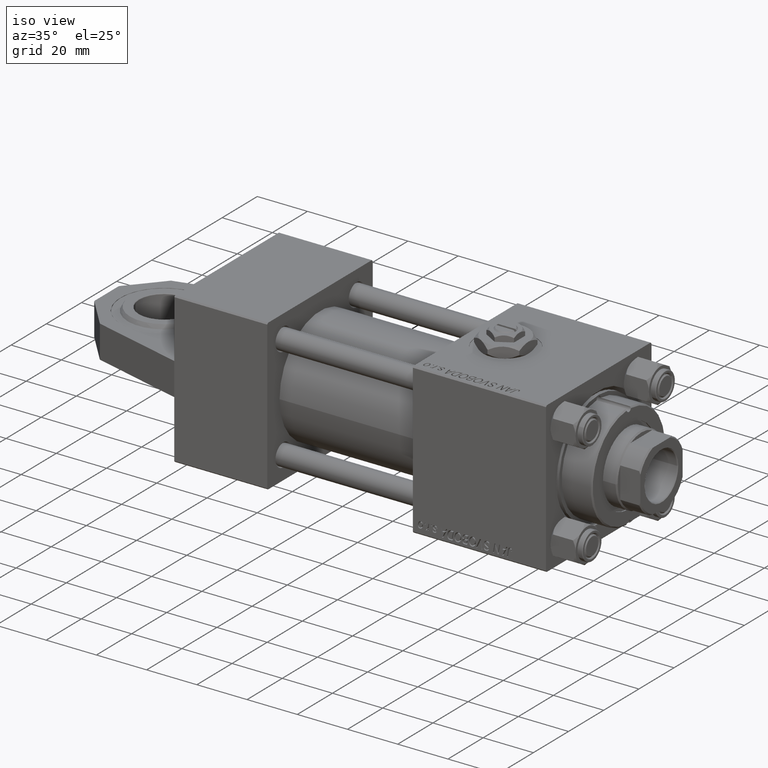
[diagram: clean part render]
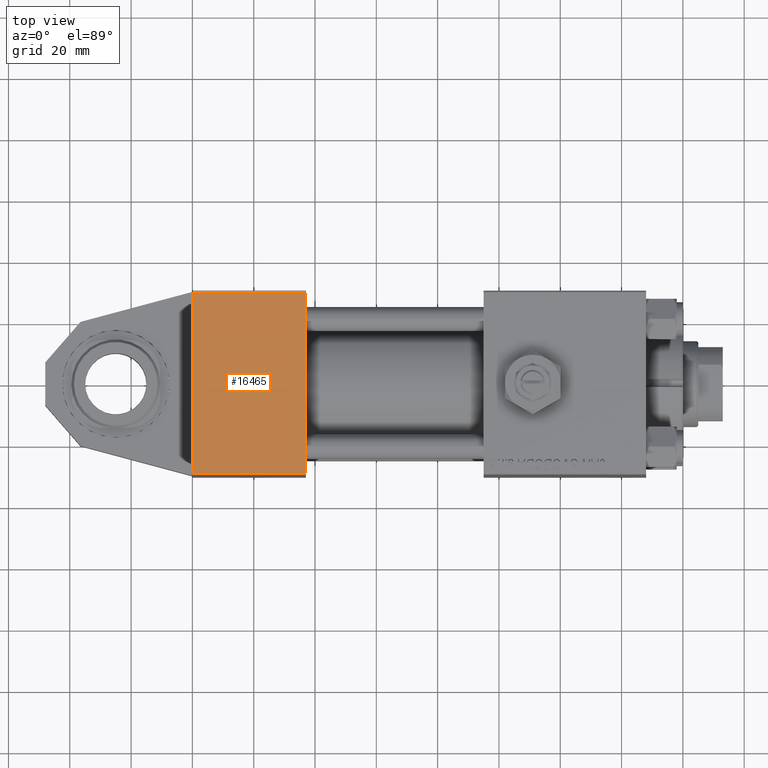
[diagram: tour spotlight — one face highlighted and labeled with its STEP entity id]
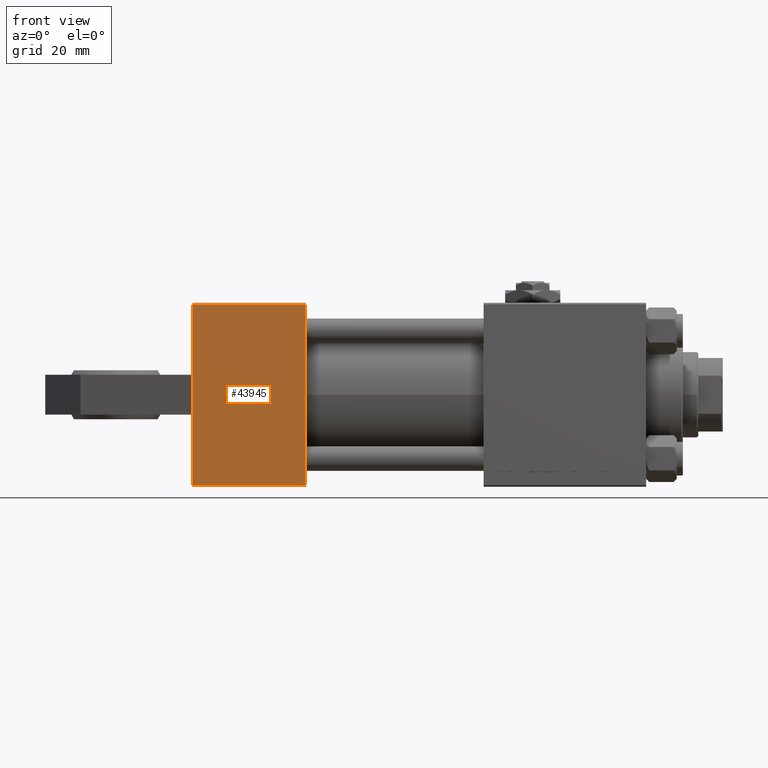
[diagram: tour spotlight — one face highlighted and labeled with its STEP entity id]
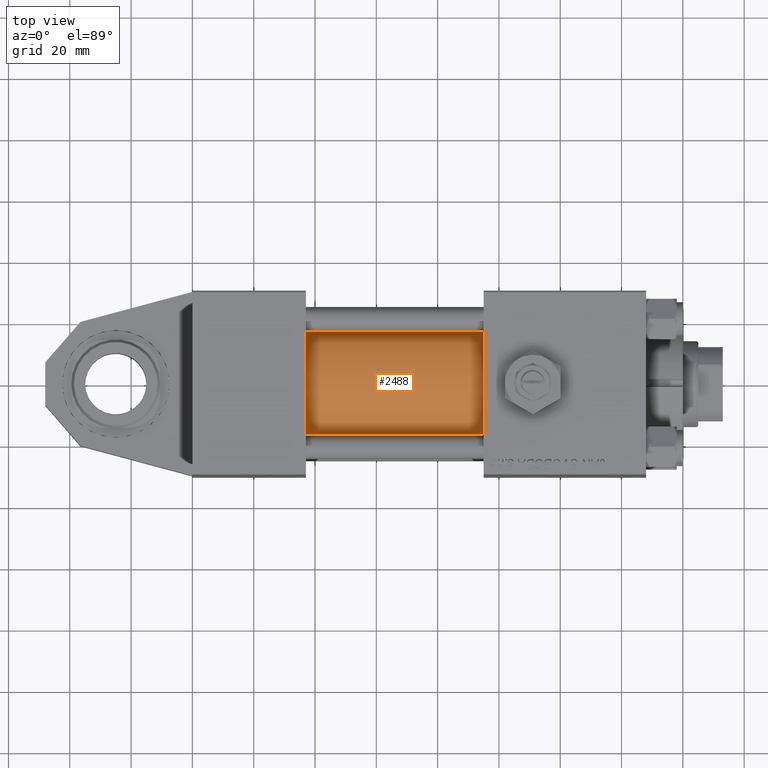
[diagram: tour spotlight — one face highlighted and labeled with its STEP entity id]
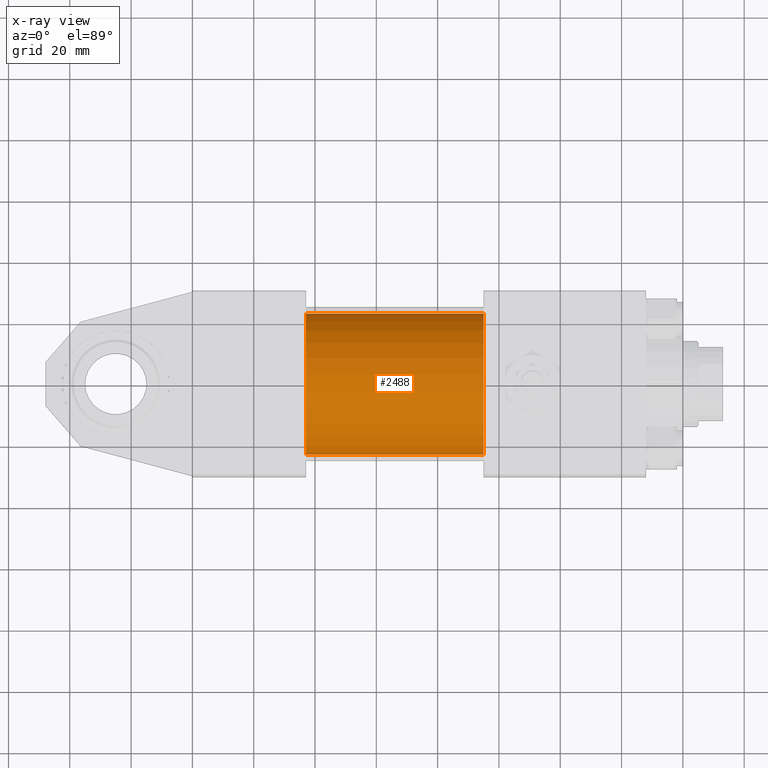
[diagram: x-ray of the same camera — body ghosted, this tour face saturated]
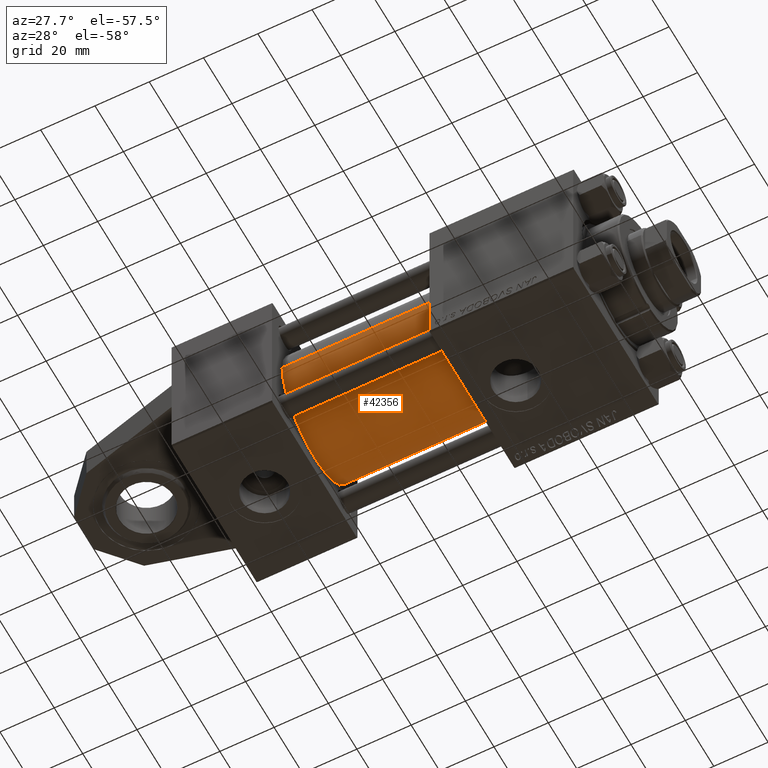
[diagram: tour spotlight — one face highlighted and labeled with its STEP entity id]
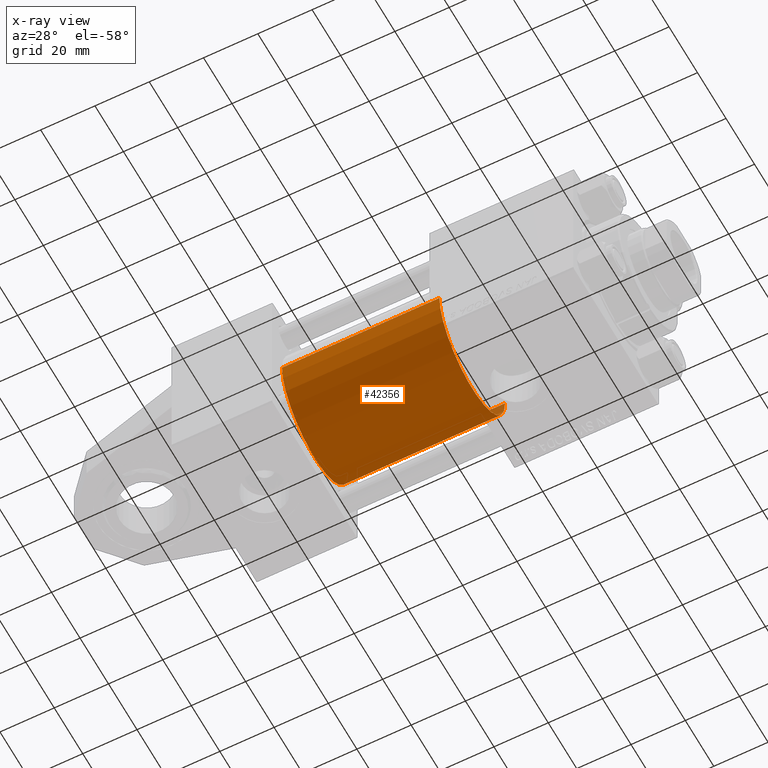
[diagram: x-ray of the same camera — body ghosted, this tour face saturated]
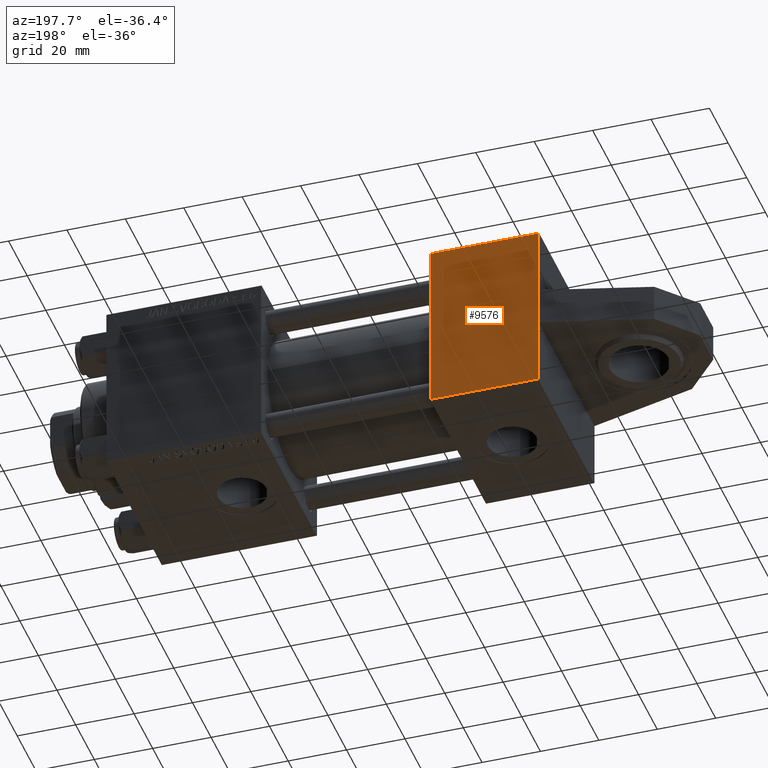
[diagram: tour spotlight — one face highlighted and labeled with its STEP entity id]
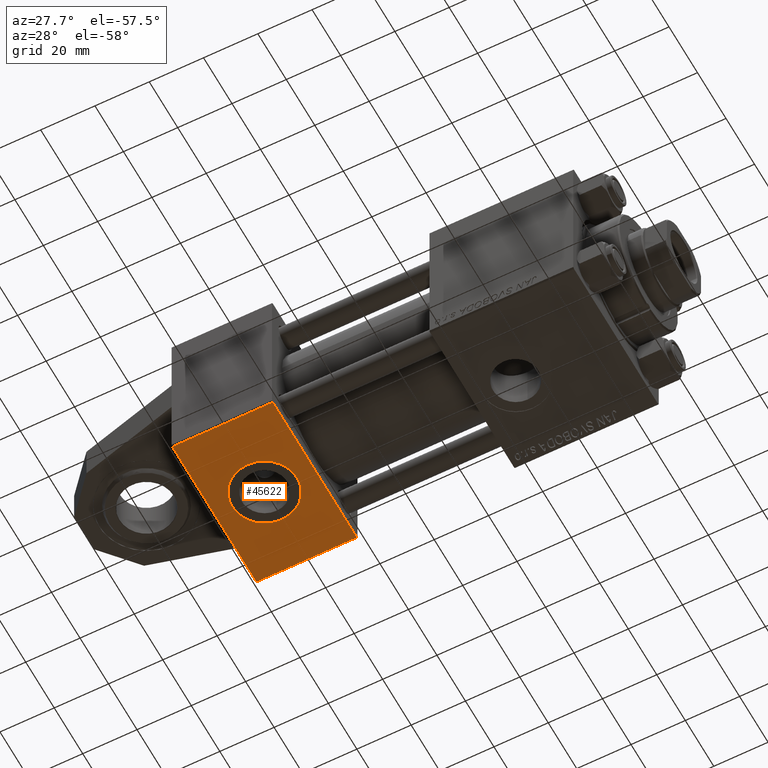
[diagram: tour spotlight — one face highlighted and labeled with its STEP entity id]
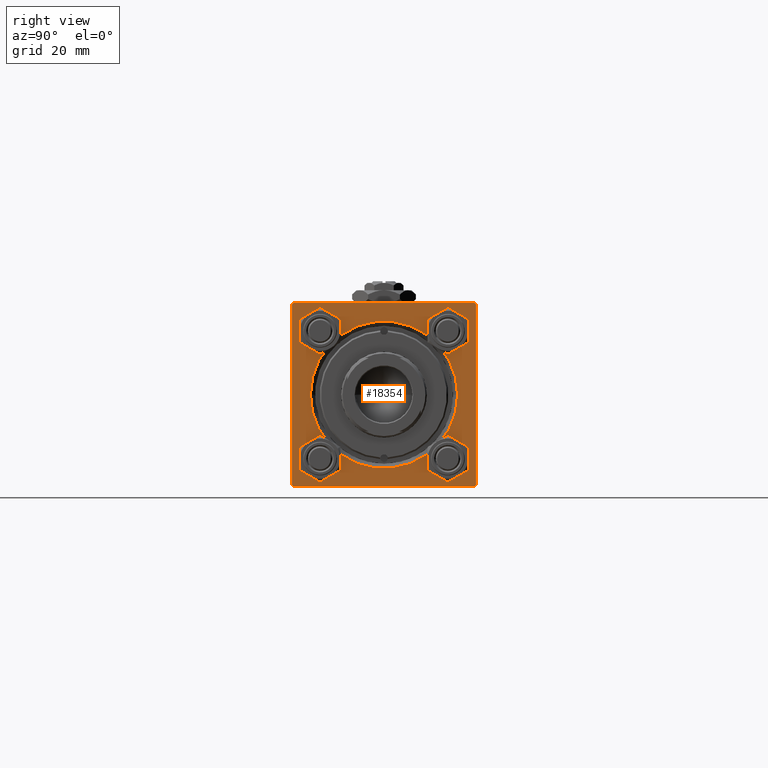
[diagram: tour spotlight — one face highlighted and labeled with its STEP entity id]
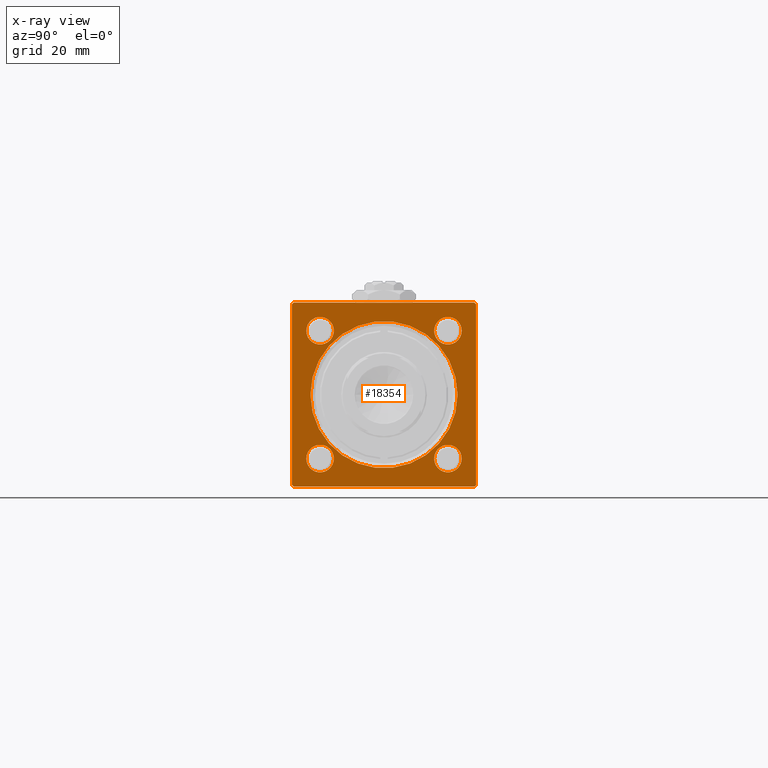
[diagram: x-ray of the same camera — body ghosted, this tour face saturated]
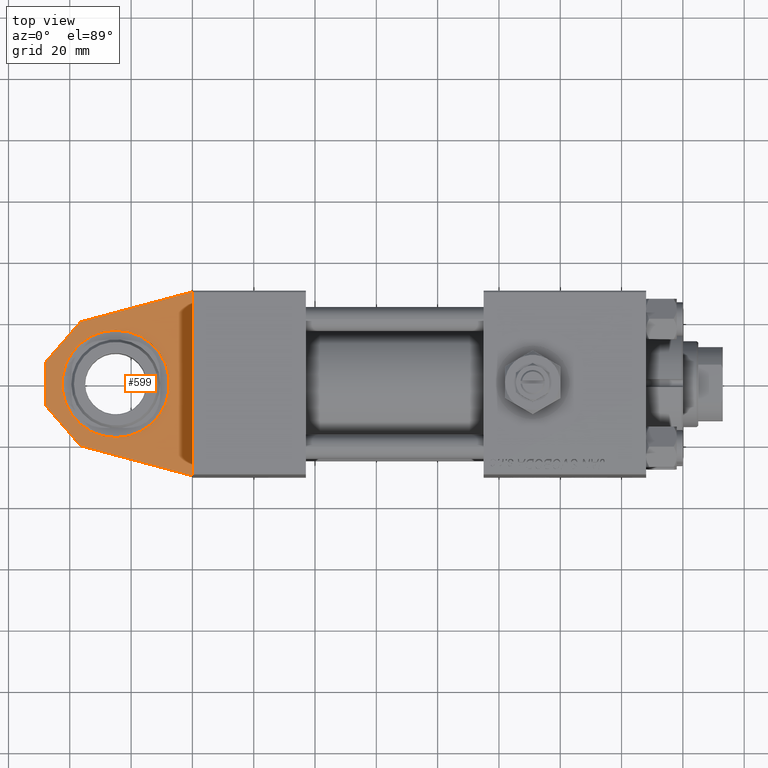
[diagram: tour spotlight — one face highlighted and labeled with its STEP entity id]
A machine part: a face-by-face anatomy tour. The part has 1193 B-rep faces; the first image is the clean iso view, then the 8 largest visible faces are spotlighted one at a time (largest first), each with its STEP entity span.

Face 1 — top view, entity #16465. In plain terms, the highlighted planar face has unit normal (0, 0, 1).
Definition (entity closure, byte-faithful):
#1224 = VECTOR ( 'NONE', #47038, 1000.000000000000000 ) ;
#1463 = EDGE_CURVE ( 'NONE', #30868, #1765, #15321, .T. ) ;
#1765 = VERTEX_POINT ( 'NONE', #11821 ) ;
#4557 = EDGE_LOOP ( 'NONE', ( #46574, #47346, #33734, #6686 ) ) ;
#6686 = ORIENTED_EDGE ( 'NONE', *, *, #21506, .T. ) ;
#6831 = VECTOR ( 'NONE', #15066, 1000.000000000000000 ) ;
#8109 = CARTESIAN_POINT ( 'NONE',  ( 0.000000000000000000, 29.99999999999999289, 29.50000000000000000 ) ) ;
#8857 = EDGE_CURVE ( 'NONE', #48826, #31674, #39397, .T. ) ;
#9228 = DIRECTION ( 'NONE',  ( 0.000000000000000000, -0.000000000000000000, 1.000000000000000000 ) ) ;
#10045 = CARTESIAN_POINT ( 'NONE',  ( 0.000000000000000000, 29.99999999999999289, -29.50000000000000000 ) ) ;
#11733 = LINE ( 'NONE', #28292, #17201 ) ;
#11821 = CARTESIAN_POINT ( 'NONE',  ( 37.00000000000000000, 29.99999999999999289, -29.50000000000000000 ) ) ;
#13997 = AXIS2_PLACEMENT_3D ( 'NONE', #49994, #42087, #9228 ) ;
#14458 = LINE ( 'NONE', #30492, #22190 ) ;
#15066 = DIRECTION ( 'NONE',  ( 0.000000000000000000, 0.000000000000000000, -1.000000000000000000 ) ) ;
#15321 = LINE ( 'NONE', #47671, #6831 ) ;
#15488 = CARTESIAN_POINT ( 'NONE',  ( 0.000000000000000000, 29.99999999999999289, 30.00000000000000000 ) ) ;
#16465 = ADVANCED_FACE ( 'NONE', ( #25807 ), #30006, .T. ) ;
#17201 = VECTOR ( 'NONE', #24105, 1000.000000000000000 ) ;
#21506 = EDGE_CURVE ( 'NONE', #48826, #30868, #14458, .T. ) ;
#22190 = VECTOR ( 'NONE', #50487, 1000.000000000000000 ) ;
#24105 = DIRECTION ( 'NONE',  ( -1.000000000000000000, 0.000000000000000000, 0.000000000000000000 ) ) ;
#25807 = FACE_OUTER_BOUND ( 'NONE', #4557, .T. ) ;
#27440 = EDGE_CURVE ( 'NONE', #1765, #31674, #11733, .T. ) ;
#28292 = CARTESIAN_POINT ( 'NONE',  ( 37.00000000000000000, 29.99999999999999289, -29.50000000000000000 ) ) ;
#30006 = PLANE ( 'NONE',  #13997 ) ;
#30492 = CARTESIAN_POINT ( 'NONE',  ( 37.00000000000000000, 29.99999999999999289, 29.50000000000000000 ) ) ;
#30868 = VERTEX_POINT ( 'NONE', #48088 ) ;
#31674 = VERTEX_POINT ( 'NONE', #10045 ) ;
#33734 = ORIENTED_EDGE ( 'NONE', *, *, #8857, .F. ) ;
#39397 = LINE ( 'NONE', #15488, #1224 ) ;
#42087 = DIRECTION ( 'NONE',  ( -0.000000000000000000, 1.000000000000000000, 0.000000000000000000 ) ) ;
#46574 = ORIENTED_EDGE ( 'NONE', *, *, #1463, .T. ) ;
#47038 = DIRECTION ( 'NONE',  ( 0.000000000000000000, 0.000000000000000000, -1.000000000000000000 ) ) ;
#47346 = ORIENTED_EDGE ( 'NONE', *, *, #27440, .T. ) ;
#47671 = CARTESIAN_POINT ( 'NONE',  ( 37.00000000000000000, 29.99999999999999289, 30.00000000000000000 ) ) ;
#48088 = CARTESIAN_POINT ( 'NONE',  ( 37.00000000000000000, 29.99999999999999289, 29.50000000000000000 ) ) ;
#48826 = VERTEX_POINT ( 'NONE', #8109 ) ;
#49994 = CARTESIAN_POINT ( 'NONE',  ( 37.00000000000000000, 29.99999999999999289, 30.00000000000000000 ) ) ;
#50487 = DIRECTION ( 'NONE',  ( 1.000000000000000000, 0.000000000000000000, 0.000000000000000000 ) ) ;

Face 2 — front view, entity #43945. In plain terms, the highlighted planar face has unit normal (0, 1, 0).
Definition (entity closure, byte-faithful):
#1115 = EDGE_CURVE ( 'NONE', #34576, #37684, #36386, .T. ) ;
#1555 = VECTOR ( 'NONE', #15797, 1000.000000000000000 ) ;
#3020 = CARTESIAN_POINT ( 'NONE',  ( 37.00000000000000000, 29.99999999999999289, 30.00000000000000000 ) ) ;
#3121 = EDGE_LOOP ( 'NONE', ( #35570, #42217, #8336, #37119, #47876, #26384 ) ) ;
#4001 = LINE ( 'NONE', #48725, #16405 ) ;
#6242 = DIRECTION ( 'NONE',  ( 0.000000000000000000, -1.000000000000000000, -1.156482317317871725E-16 ) ) ;
#7372 = LINE ( 'NONE', #23447, #12415 ) ;
#7799 = DIRECTION ( 'NONE',  ( 0.000000000000000000, -1.000000000000000000, -1.156482317317871725E-16 ) ) ;
#8336 = ORIENTED_EDGE ( 'NONE', *, *, #41938, .T. ) ;
#12415 = VECTOR ( 'NONE', #39457, 1000.000000000000000 ) ;
#12684 = DIRECTION ( 'NONE',  ( -1.000000000000000000, 0.000000000000000000, 0.000000000000000000 ) ) ;
#13330 = CARTESIAN_POINT ( 'NONE',  ( 37.00000000000000000, 29.49999999999999289, 30.00000000000000000 ) ) ;
#14906 = DIRECTION ( 'NONE',  ( 0.000000000000000000, 1.000000000000000000, 1.156482317317871725E-16 ) ) ;
#15797 = DIRECTION ( 'NONE',  ( 0.000000000000000000, -1.000000000000000000, -1.156482317317871725E-16 ) ) ;
#16087 = CARTESIAN_POINT ( 'NONE',  ( 0.000000000000000000, 29.49999999999999289, 30.00000000000000000 ) ) ;
#16405 = VECTOR ( 'NONE', #12684, 1000.000000000000000 ) ;
#16686 = CARTESIAN_POINT ( 'NONE',  ( 0.000000000000000000, -6.500000000000000000, 29.99999999999999289 ) ) ;
#16822 = LINE ( 'NONE', #28137, #1555 ) ;
#17111 = CARTESIAN_POINT ( 'NONE',  ( 0.000000000000000000, 6.500000000000000000, 29.99999999999999289 ) ) ;
#19236 = CARTESIAN_POINT ( 'NONE',  ( 0.000000000000000000, -29.49999999999998579, 29.99999999999999289 ) ) ;
#22055 = CARTESIAN_POINT ( 'NONE',  ( 0.000000000000000000, -6.500000000000000000, 29.99999999999999289 ) ) ;
#22577 = LINE ( 'NONE', #42282, #36033 ) ;
#23447 = CARTESIAN_POINT ( 'NONE',  ( 37.00000000000000000, -29.50000000000000000, 29.99999999999999289 ) ) ;
#23846 = EDGE_CURVE ( 'NONE', #34843, #47550, #39101, .T. ) ;
#26384 = ORIENTED_EDGE ( 'NONE', *, *, #47527, .T. ) ;
#28137 = CARTESIAN_POINT ( 'NONE',  ( 0.000000000000000000, 29.99999999999999289, 30.00000000000000000 ) ) ;
#32844 = VERTEX_POINT ( 'NONE', #16087 ) ;
#34576 = VERTEX_POINT ( 'NONE', #22055 ) ;
#34843 = VERTEX_POINT ( 'NONE', #13330 ) ;
#35281 = EDGE_CURVE ( 'NONE', #36537, #47550, #7372, .T. ) ;
#35395 = DIRECTION ( 'NONE',  ( 0.000000000000000000, 1.156482317317871725E-16, -1.000000000000000000 ) ) ;
#35570 = ORIENTED_EDGE ( 'NONE', *, *, #41324, .T. ) ;
#36033 = VECTOR ( 'NONE', #6242, 1000.000000000000000 ) ;
#36386 = LINE ( 'NONE', #16686, #39587 ) ;
#36537 = VERTEX_POINT ( 'NONE', #19236 ) ;
#37119 = ORIENTED_EDGE ( 'NONE', *, *, #35281, .T. ) ;
#37684 = VERTEX_POINT ( 'NONE', #17111 ) ;
#39101 = LINE ( 'NONE', #51736, #46465 ) ;
#39457 = DIRECTION ( 'NONE',  ( 1.000000000000000000, 0.000000000000000000, 0.000000000000000000 ) ) ;
#39587 = VECTOR ( 'NONE', #40854, 1000.000000000000000 ) ;
#40854 = DIRECTION ( 'NONE',  ( 0.000000000000000000, 1.000000000000000000, 0.000000000000000000 ) ) ;
#41150 = AXIS2_PLACEMENT_3D ( 'NONE', #3020, #35395, #14906 ) ;
#41324 = EDGE_CURVE ( 'NONE', #32844, #37684, #16822, .T. ) ;
#41938 = EDGE_CURVE ( 'NONE', #34576, #36537, #22577, .T. ) ;
#42217 = ORIENTED_EDGE ( 'NONE', *, *, #1115, .F. ) ;
#42238 = FACE_OUTER_BOUND ( 'NONE', #3121, .T. ) ;
#42282 = CARTESIAN_POINT ( 'NONE',  ( 0.000000000000000000, 29.99999999999999289, 30.00000000000000000 ) ) ;
#43945 = ADVANCED_FACE ( 'NONE', ( #42238 ), #51431, .F. ) ;
#44523 = CARTESIAN_POINT ( 'NONE',  ( 37.00000000000000000, -29.49999999999998579, 29.99999999999999289 ) ) ;
#46465 = VECTOR ( 'NONE', #7799, 1000.000000000000000 ) ;
#47527 = EDGE_CURVE ( 'NONE', #34843, #32844, #4001, .T. ) ;
#47550 = VERTEX_POINT ( 'NONE', #44523 ) ;
#47876 = ORIENTED_EDGE ( 'NONE', *, *, #23846, .F. ) ;
#48725 = CARTESIAN_POINT ( 'NONE',  ( 0.000000000000000000, 29.49999999999999289, 30.00000000000000000 ) ) ;
#51431 = PLANE ( 'NONE',  #41150 ) ;
#51736 = CARTESIAN_POINT ( 'NONE',  ( 37.00000000000000000, 29.99999999999999289, 30.00000000000000000 ) ) ;

Face 3 — top view, entity #2488. An x-ray twin of the same camera follows (body ghosted, this face saturated) — the face is partly hidden behind the body. In plain terms, the highlighted cylindrical surface (partial cylindrical patch) has radius 23 mm, axis along (-1, 0, -0).
Definition (entity closure, byte-faithful):
#324 = AXIS2_PLACEMENT_3D ( 'NONE', #26028, #46272, #17106 ) ;
#1502 = VERTEX_POINT ( 'NONE', #27138 ) ;
#2451 = DIRECTION ( 'NONE',  ( -1.000000000000000000, -0.000000000000000000, -0.000000000000000000 ) ) ;
#2472 = EDGE_CURVE ( 'NONE', #45720, #44379, #41311, .T. ) ;
#2488 = ADVANCED_FACE ( 'NONE', ( #23229 ), #19803, .T. ) ;
#7197 = EDGE_CURVE ( 'NONE', #45720, #42345, #42190, .T. ) ;
#7705 = AXIS2_PLACEMENT_3D ( 'NONE', #10330, #17979, #34017 ) ;
#7938 = DIRECTION ( 'NONE',  ( -1.000000000000000000, -0.000000000000000000, -0.000000000000000000 ) ) ;
#8464 = CARTESIAN_POINT ( 'NONE',  ( 37.00000000000000000, 2.146024240737012665E-16, -23.00000000000000000 ) ) ;
#9123 = ORIENTED_EDGE ( 'NONE', *, *, #7197, .T. ) ;
#10330 = CARTESIAN_POINT ( 'NONE',  ( 95.00000000000000000, -2.602085213965210642E-15, 0.000000000000000000 ) ) ;
#11662 = VECTOR ( 'NONE', #39428, 1000.000000000000000 ) ;
#17106 = DIRECTION ( 'NONE',  ( 0.000000000000000000, 0.000000000000000000, 1.000000000000000000 ) ) ;
#17711 = ORIENTED_EDGE ( 'NONE', *, *, #40494, .F. ) ;
#17851 = ORIENTED_EDGE ( 'NONE', *, *, #50323, .T. ) ;
#17979 = DIRECTION ( 'NONE',  ( 1.000000000000000000, 0.000000000000000000, 0.000000000000000000 ) ) ;
#18640 = AXIS2_PLACEMENT_3D ( 'NONE', #47936, #7938, #47683 ) ;
#19803 = CYLINDRICAL_SURFACE ( 'NONE', #18640, 23.00000000000000000 ) ;
#23150 = CARTESIAN_POINT ( 'NONE',  ( 95.00000000000000000, -2.602085213965210642E-15, 23.00000000000000000 ) ) ;
#23229 = FACE_OUTER_BOUND ( 'NONE', #52067, .T. ) ;
#26028 = CARTESIAN_POINT ( 'NONE',  ( 37.00000000000000000, -2.602085213965210642E-15, 0.000000000000000000 ) ) ;
#27138 = CARTESIAN_POINT ( 'NONE',  ( 37.00000000000000000, -2.602085213965210642E-15, 23.00000000000000000 ) ) ;
#31772 = ORIENTED_EDGE ( 'NONE', *, *, #2472, .F. ) ;
#34017 = DIRECTION ( 'NONE',  ( 0.000000000000000000, 0.000000000000000000, -1.000000000000000000 ) ) ;
#38254 = CARTESIAN_POINT ( 'NONE',  ( 95.00000000000000000, 2.146024240737012665E-16, -23.00000000000000000 ) ) ;
#39051 = CARTESIAN_POINT ( 'NONE',  ( 95.00000000000000000, 2.146024240737012665E-16, -23.00000000000000000 ) ) ;
#39428 = DIRECTION ( 'NONE',  ( -1.000000000000000000, -0.000000000000000000, -0.000000000000000000 ) ) ;
#40494 = EDGE_CURVE ( 'NONE', #44379, #1502, #43108, .T. ) ;
#41311 = CIRCLE ( 'NONE', #7705, 23.00000000000000000 ) ;
#42190 = LINE ( 'NONE', #38254, #47416 ) ;
#42345 = VERTEX_POINT ( 'NONE', #8464 ) ;
#43108 = LINE ( 'NONE', #23150, #11662 ) ;
#43494 = CARTESIAN_POINT ( 'NONE',  ( 95.00000000000000000, -2.602085213965210642E-15, 23.00000000000000000 ) ) ;
#44379 = VERTEX_POINT ( 'NONE', #43494 ) ;
#45709 = CIRCLE ( 'NONE', #324, 23.00000000000000000 ) ;
#45720 = VERTEX_POINT ( 'NONE', #39051 ) ;
#46272 = DIRECTION ( 'NONE',  ( 1.000000000000000000, -0.000000000000000000, 0.000000000000000000 ) ) ;
#47416 = VECTOR ( 'NONE', #2451, 1000.000000000000000 ) ;
#47683 = DIRECTION ( 'NONE',  ( 0.000000000000000000, 0.000000000000000000, 1.000000000000000000 ) ) ;
#47936 = CARTESIAN_POINT ( 'NONE',  ( 95.00000000000000000, -2.602085213965210642E-15, 0.000000000000000000 ) ) ;
#50323 = EDGE_CURVE ( 'NONE', #42345, #1502, #45709, .T. ) ;
#52067 = EDGE_LOOP ( 'NONE', ( #31772, #9123, #17851, #17711 ) ) ;

Face 4 — auxiliary view, entity #42356. An x-ray twin of the same camera follows (body ghosted, this face saturated) — the face is partly hidden behind the body. In plain terms, the highlighted cylindrical surface (partial cylindrical patch) has radius 23 mm, axis along (-1, 0, -0).
Definition (entity closure, byte-faithful):
#1502 = VERTEX_POINT ( 'NONE', #27138 ) ;
#2451 = DIRECTION ( 'NONE',  ( -1.000000000000000000, -0.000000000000000000, -0.000000000000000000 ) ) ;
#4242 = DIRECTION ( 'NONE',  ( 0.000000000000000000, 0.000000000000000000, 1.000000000000000000 ) ) ;
#7197 = EDGE_CURVE ( 'NONE', #45720, #42345, #42190, .T. ) ;
#7617 = EDGE_CURVE ( 'NONE', #1502, #42345, #16328, .T. ) ;
#8464 = CARTESIAN_POINT ( 'NONE',  ( 37.00000000000000000, 2.146024240737012665E-16, -23.00000000000000000 ) ) ;
#10467 = ORIENTED_EDGE ( 'NONE', *, *, #7197, .F. ) ;
#11109 = DIRECTION ( 'NONE',  ( 1.000000000000000000, 0.000000000000000000, 0.000000000000000000 ) ) ;
#11176 = ORIENTED_EDGE ( 'NONE', *, *, #7617, .T. ) ;
#11363 = DIRECTION ( 'NONE',  ( 1.000000000000000000, -0.000000000000000000, 0.000000000000000000 ) ) ;
#11662 = VECTOR ( 'NONE', #39428, 1000.000000000000000 ) ;
#12164 = DIRECTION ( 'NONE',  ( -1.000000000000000000, -0.000000000000000000, -0.000000000000000000 ) ) ;
#13204 = CIRCLE ( 'NONE', #49319, 23.00000000000000000 ) ;
#15080 = CARTESIAN_POINT ( 'NONE',  ( 95.00000000000000000, -2.602085213965210642E-15, 0.000000000000000000 ) ) ;
#16328 = CIRCLE ( 'NONE', #27236, 23.00000000000000000 ) ;
#20575 = FACE_OUTER_BOUND ( 'NONE', #20634, .T. ) ;
#20634 = EDGE_LOOP ( 'NONE', ( #10467, #37884, #29545, #11176 ) ) ;
#23150 = CARTESIAN_POINT ( 'NONE',  ( 95.00000000000000000, -2.602085213965210642E-15, 23.00000000000000000 ) ) ;
#23498 = DIRECTION ( 'NONE',  ( 0.000000000000000000, 0.000000000000000000, -1.000000000000000000 ) ) ;
#27138 = CARTESIAN_POINT ( 'NONE',  ( 37.00000000000000000, -2.602085213965210642E-15, 23.00000000000000000 ) ) ;
#27236 = AXIS2_PLACEMENT_3D ( 'NONE', #31348, #11363, #47131 ) ;
#29331 = AXIS2_PLACEMENT_3D ( 'NONE', #36343, #12164, #4242 ) ;
#29545 = ORIENTED_EDGE ( 'NONE', *, *, #40494, .T. ) ;
#31348 = CARTESIAN_POINT ( 'NONE',  ( 37.00000000000000000, -2.602085213965210642E-15, 0.000000000000000000 ) ) ;
#32919 = CYLINDRICAL_SURFACE ( 'NONE', #29331, 23.00000000000000000 ) ;
#34052 = EDGE_CURVE ( 'NONE', #44379, #45720, #13204, .T. ) ;
#36343 = CARTESIAN_POINT ( 'NONE',  ( 95.00000000000000000, -2.602085213965210642E-15, 0.000000000000000000 ) ) ;
#37884 = ORIENTED_EDGE ( 'NONE', *, *, #34052, .F. ) ;
#38254 = CARTESIAN_POINT ( 'NONE',  ( 95.00000000000000000, 2.146024240737012665E-16, -23.00000000000000000 ) ) ;
#39051 = CARTESIAN_POINT ( 'NONE',  ( 95.00000000000000000, 2.146024240737012665E-16, -23.00000000000000000 ) ) ;
#39428 = DIRECTION ( 'NONE',  ( -1.000000000000000000, -0.000000000000000000, -0.000000000000000000 ) ) ;
#40494 = EDGE_CURVE ( 'NONE', #44379, #1502, #43108, .T. ) ;
#42190 = LINE ( 'NONE', #38254, #47416 ) ;
#42345 = VERTEX_POINT ( 'NONE', #8464 ) ;
#42356 = ADVANCED_FACE ( 'NONE', ( #20575 ), #32919, .T. ) ;
#43108 = LINE ( 'NONE', #23150, #11662 ) ;
#43494 = CARTESIAN_POINT ( 'NONE',  ( 95.00000000000000000, -2.602085213965210642E-15, 23.00000000000000000 ) ) ;
#44379 = VERTEX_POINT ( 'NONE', #43494 ) ;
#45720 = VERTEX_POINT ( 'NONE', #39051 ) ;
#47131 = DIRECTION ( 'NONE',  ( 0.000000000000000000, 0.000000000000000000, 1.000000000000000000 ) ) ;
#47416 = VECTOR ( 'NONE', #2451, 1000.000000000000000 ) ;
#49319 = AXIS2_PLACEMENT_3D ( 'NONE', #15080, #11109, #23498 ) ;

Face 5 — auxiliary view, entity #9576. In plain terms, the highlighted planar face has unit normal (0, 1, 0).
Definition (entity closure, byte-faithful):
#919 = VERTEX_POINT ( 'NONE', #33019 ) ;
#2285 = ORIENTED_EDGE ( 'NONE', *, *, #47110, .T. ) ;
#3332 = CARTESIAN_POINT ( 'NONE',  ( 0.000000000000000000, 6.500000000000000000, -30.00000000000000711 ) ) ;
#4486 = CARTESIAN_POINT ( 'NONE',  ( 0.000000000000000000, -6.499999999999984901, -30.00000000000000355 ) ) ;
#7044 = VECTOR ( 'NONE', #25009, 1000.000000000000000 ) ;
#9576 = ADVANCED_FACE ( 'NONE', ( #46661 ), #39270, .T. ) ;
#9729 = CARTESIAN_POINT ( 'NONE',  ( 37.00000000000000000, -29.50000000000000000, -30.00000000000000711 ) ) ;
#10648 = EDGE_CURVE ( 'NONE', #24525, #41633, #28230, .T. ) ;
#11876 = ORIENTED_EDGE ( 'NONE', *, *, #10648, .T. ) ;
#13992 = EDGE_CURVE ( 'NONE', #24525, #919, #41994, .T. ) ;
#14198 = CARTESIAN_POINT ( 'NONE',  ( 37.00000000000000000, 29.49999999999997868, -30.00000000000000000 ) ) ;
#14285 = EDGE_LOOP ( 'NONE', ( #32132, #44305, #28522, #2285, #42139, #11876 ) ) ;
#14729 = VERTEX_POINT ( 'NONE', #9729 ) ;
#17376 = LINE ( 'NONE', #14198, #7044 ) ;
#17814 = CARTESIAN_POINT ( 'NONE',  ( 0.000000000000000000, 29.99999999999999289, -30.00000000000000000 ) ) ;
#18449 = CARTESIAN_POINT ( 'NONE',  ( 0.000000000000000000, -29.50000000000001066, -30.00000000000000711 ) ) ;
#18996 = VERTEX_POINT ( 'NONE', #26119 ) ;
#19108 = DIRECTION ( 'NONE',  ( 0.000000000000000000, -1.000000000000000000, -1.156482317317871725E-16 ) ) ;
#20522 = VECTOR ( 'NONE', #23523, 1000.000000000000000 ) ;
#22011 = DIRECTION ( 'NONE',  ( 0.000000000000000000, -1.000000000000000000, -1.156482317317871725E-16 ) ) ;
#23523 = DIRECTION ( 'NONE',  ( 0.000000000000000000, 1.000000000000000000, 0.000000000000000000 ) ) ;
#23993 = VECTOR ( 'NONE', #22011, 1000.000000000000000 ) ;
#24525 = VERTEX_POINT ( 'NONE', #4486 ) ;
#24736 = VECTOR ( 'NONE', #30805, 1000.000000000000000 ) ;
#25009 = DIRECTION ( 'NONE',  ( 1.000000000000000000, 0.000000000000000000, 0.000000000000000000 ) ) ;
#25079 = CARTESIAN_POINT ( 'NONE',  ( 37.00000000000000000, 29.49999999999997868, -30.00000000000000000 ) ) ;
#26119 = CARTESIAN_POINT ( 'NONE',  ( 0.000000000000000000, 29.49999999999997868, -30.00000000000000000 ) ) ;
#26466 = CARTESIAN_POINT ( 'NONE',  ( 0.000000000000000000, 29.99999999999999289, -30.00000000000000000 ) ) ;
#27169 = DIRECTION ( 'NONE',  ( 0.000000000000000000, 1.156482317317871725E-16, -1.000000000000000000 ) ) ;
#27240 = LINE ( 'NONE', #26466, #45331 ) ;
#27641 = LINE ( 'NONE', #28672, #28152 ) ;
#28152 = VECTOR ( 'NONE', #31589, 1000.000000000000000 ) ;
#28230 = LINE ( 'NONE', #44281, #20522 ) ;
#28522 = ORIENTED_EDGE ( 'NONE', *, *, #47839, .T. ) ;
#28672 = CARTESIAN_POINT ( 'NONE',  ( 37.00000000000000000, 29.99999999999999289, -30.00000000000000000 ) ) ;
#30346 = CARTESIAN_POINT ( 'NONE',  ( 37.00000000000000000, 29.99999999999999289, -30.00000000000000000 ) ) ;
#30805 = DIRECTION ( 'NONE',  ( -1.000000000000000000, 0.000000000000000000, 0.000000000000000000 ) ) ;
#31589 = DIRECTION ( 'NONE',  ( 0.000000000000000000, -1.000000000000000000, -1.156482317317871725E-16 ) ) ;
#32132 = ORIENTED_EDGE ( 'NONE', *, *, #43965, .F. ) ;
#32652 = VERTEX_POINT ( 'NONE', #25079 ) ;
#33019 = CARTESIAN_POINT ( 'NONE',  ( 0.000000000000000000, -29.50000000000000000, -30.00000000000000711 ) ) ;
#38233 = DIRECTION ( 'NONE',  ( 0.000000000000000000, 1.000000000000000000, 1.156482317317871725E-16 ) ) ;
#38671 = LINE ( 'NONE', #18449, #24736 ) ;
#39270 = PLANE ( 'NONE',  #39924 ) ;
#39924 = AXIS2_PLACEMENT_3D ( 'NONE', #30346, #27169, #38233 ) ;
#41633 = VERTEX_POINT ( 'NONE', #3332 ) ;
#41994 = LINE ( 'NONE', #17814, #23993 ) ;
#42139 = ORIENTED_EDGE ( 'NONE', *, *, #13992, .F. ) ;
#43965 = EDGE_CURVE ( 'NONE', #18996, #41633, #27240, .T. ) ;
#44281 = CARTESIAN_POINT ( 'NONE',  ( 0.000000000000000000, -6.500000000000000000, -30.00000000000000711 ) ) ;
#44305 = ORIENTED_EDGE ( 'NONE', *, *, #50385, .T. ) ;
#45331 = VECTOR ( 'NONE', #19108, 1000.000000000000000 ) ;
#46661 = FACE_OUTER_BOUND ( 'NONE', #14285, .T. ) ;
#47110 = EDGE_CURVE ( 'NONE', #14729, #919, #38671, .T. ) ;
#47839 = EDGE_CURVE ( 'NONE', #32652, #14729, #27641, .T. ) ;
#50385 = EDGE_CURVE ( 'NONE', #18996, #32652, #17376, .T. ) ;

Face 6 — auxiliary view, entity #45622. In plain terms, the highlighted planar face has unit normal (0, 0, 1).
Definition (entity closure, byte-faithful):
#353 = VERTEX_POINT ( 'NONE', #21121 ) ;
#2230 = PLANE ( 'NONE',  #7623 ) ;
#2247 = CARTESIAN_POINT ( 'NONE',  ( 37.00000000000000000, -30.00000000000000000, 29.49999999999999289 ) ) ;
#3283 = LINE ( 'NONE', #2247, #5018 ) ;
#3571 = CARTESIAN_POINT ( 'NONE',  ( 18.50000000000000000, -30.00000000000000000, 12.00000000000000178 ) ) ;
#3575 = VERTEX_POINT ( 'NONE', #9013 ) ;
#4027 = EDGE_CURVE ( 'NONE', #13636, #23868, #19596, .T. ) ;
#4609 = CARTESIAN_POINT ( 'NONE',  ( 37.00000000000000000, -30.00000000000000000, -29.50000000000001776 ) ) ;
#5018 = VECTOR ( 'NONE', #26981, 1000.000000000000000 ) ;
#6947 = CIRCLE ( 'NONE', #45723, 12.00000000000000178 ) ;
#7623 = AXIS2_PLACEMENT_3D ( 'NONE', #17794, #29884, #21988 ) ;
#8347 = EDGE_CURVE ( 'NONE', #3575, #38959, #50056, .T. ) ;
#9013 = CARTESIAN_POINT ( 'NONE',  ( 0.000000000000000000, -30.00000000000000000, -29.50000000000001776 ) ) ;
#11169 = AXIS2_PLACEMENT_3D ( 'NONE', #38877, #30487, #27055 ) ;
#12556 = CARTESIAN_POINT ( 'NONE',  ( 0.000000000000000000, -30.00000000000000000, 29.99999999999999289 ) ) ;
#13636 = VERTEX_POINT ( 'NONE', #14443 ) ;
#14250 = VECTOR ( 'NONE', #44133, 1000.000000000000000 ) ;
#14443 = CARTESIAN_POINT ( 'NONE',  ( 18.50000000000000000, -30.00000000000000000, -12.00000000000000178 ) ) ;
#15717 = ORIENTED_EDGE ( 'NONE', *, *, #8347, .T. ) ;
#15908 = ORIENTED_EDGE ( 'NONE', *, *, #22917, .F. ) ;
#17016 = VECTOR ( 'NONE', #30191, 1000.000000000000000 ) ;
#17794 = CARTESIAN_POINT ( 'NONE',  ( 37.00000000000000000, -30.00000000000000000, 29.99999999999999289 ) ) ;
#18257 = EDGE_CURVE ( 'NONE', #353, #38959, #21792, .T. ) ;
#18556 = DIRECTION ( 'NONE',  ( 0.000000000000000000, -1.000000000000000000, -8.673617379884036705E-17 ) ) ;
#19596 = CIRCLE ( 'NONE', #11169, 12.00000000000000178 ) ;
#20286 = CARTESIAN_POINT ( 'NONE',  ( 0.000000000000000000, -30.00000000000000000, 29.49999999999999289 ) ) ;
#21121 = CARTESIAN_POINT ( 'NONE',  ( 37.00000000000000000, -30.00000000000000000, 29.49999999999999289 ) ) ;
#21792 = LINE ( 'NONE', #22310, #17016 ) ;
#21988 = DIRECTION ( 'NONE',  ( 0.000000000000000000, -0.000000000000000000, 1.000000000000000000 ) ) ;
#22310 = CARTESIAN_POINT ( 'NONE',  ( 37.00000000000000000, -30.00000000000000000, 29.99999999999999289 ) ) ;
#22771 = FACE_BOUND ( 'NONE', #46558, .T. ) ;
#22917 = EDGE_CURVE ( 'NONE', #23868, #13636, #6947, .T. ) ;
#23757 = EDGE_LOOP ( 'NONE', ( #47016, #15717, #38222, #47188 ) ) ;
#23868 = VERTEX_POINT ( 'NONE', #3571 ) ;
#26981 = DIRECTION ( 'NONE',  ( -1.000000000000000000, 0.000000000000000000, 0.000000000000000000 ) ) ;
#27055 = DIRECTION ( 'NONE',  ( 0.000000000000000000, 0.000000000000000000, -1.000000000000000000 ) ) ;
#29884 = DIRECTION ( 'NONE',  ( -0.000000000000000000, 1.000000000000000000, 0.000000000000000000 ) ) ;
#30148 = FACE_OUTER_BOUND ( 'NONE', #23757, .T. ) ;
#30191 = DIRECTION ( 'NONE',  ( 0.000000000000000000, 0.000000000000000000, -1.000000000000000000 ) ) ;
#30487 = DIRECTION ( 'NONE',  ( 0.000000000000000000, -1.000000000000000000, -8.673617379884036705E-17 ) ) ;
#30573 = CARTESIAN_POINT ( 'NONE',  ( 37.00000000000000000, -30.00000000000000000, -29.50000000000001776 ) ) ;
#34082 = DIRECTION ( 'NONE',  ( 0.000000000000000000, 0.000000000000000000, -1.000000000000000000 ) ) ;
#34519 = DIRECTION ( 'NONE',  ( 1.000000000000000000, 0.000000000000000000, 0.000000000000000000 ) ) ;
#38222 = ORIENTED_EDGE ( 'NONE', *, *, #18257, .F. ) ;
#38645 = VERTEX_POINT ( 'NONE', #20286 ) ;
#38877 = CARTESIAN_POINT ( 'NONE',  ( 18.50000000000000000, -30.00000000000000000, 0.000000000000000000 ) ) ;
#38959 = VERTEX_POINT ( 'NONE', #4609 ) ;
#41596 = ORIENTED_EDGE ( 'NONE', *, *, #4027, .F. ) ;
#42994 = EDGE_CURVE ( 'NONE', #38645, #3575, #47564, .T. ) ;
#43946 = EDGE_CURVE ( 'NONE', #353, #38645, #3283, .T. ) ;
#44133 = DIRECTION ( 'NONE',  ( 0.000000000000000000, 0.000000000000000000, -1.000000000000000000 ) ) ;
#44924 = VECTOR ( 'NONE', #34519, 1000.000000000000000 ) ;
#45622 = ADVANCED_FACE ( 'NONE', ( #22771, #30148 ), #2230, .F. ) ;
#45723 = AXIS2_PLACEMENT_3D ( 'NONE', #46703, #18556, #34082 ) ;
#46558 = EDGE_LOOP ( 'NONE', ( #41596, #15908 ) ) ;
#46703 = CARTESIAN_POINT ( 'NONE',  ( 18.50000000000000000, -30.00000000000000000, 0.000000000000000000 ) ) ;
#47016 = ORIENTED_EDGE ( 'NONE', *, *, #42994, .T. ) ;
#47188 = ORIENTED_EDGE ( 'NONE', *, *, #43946, .T. ) ;
#47564 = LINE ( 'NONE', #12556, #14250 ) ;
#50056 = LINE ( 'NONE', #30573, #44924 ) ;

Face 7 — right view, entity #18354. An x-ray twin of the same camera follows (body ghosted, this face saturated) — the face is partly hidden behind the body. In plain terms, the highlighted planar face has unit normal (-1, 0, 0).
Definition (entity closure, byte-faithful):
#560 = AXIS2_PLACEMENT_3D ( 'NONE', #28616, #52036, #32302 ) ;
#615 = ORIENTED_EDGE ( 'NONE', *, *, #19749, .T. ) ;
#949 = EDGE_CURVE ( 'NONE', #15666, #23549, #41950, .T. ) ;
#1213 = DIRECTION ( 'NONE',  ( -1.000000000000000000, 0.000000000000000000, -0.000000000000000000 ) ) ;
#1562 = EDGE_LOOP ( 'NONE', ( #7920, #50247 ) ) ;
#1666 = DIRECTION ( 'NONE',  ( 0.000000000000000000, 0.7071067811865474617, -0.7071067811865474617 ) ) ;
#1925 = CARTESIAN_POINT ( 'NONE',  ( 148.0000000000000000, 30.00000000000000000, 30.00000000000000000 ) ) ;
#2185 = CARTESIAN_POINT ( 'NONE',  ( 148.0000000000000000, 0.000000000000000000, -24.00000000000003908 ) ) ;
#2246 = CIRCLE ( 'NONE', #45082, 4.500000000000017764 ) ;
#2768 = DIRECTION ( 'NONE',  ( 0.000000000000000000, 0.000000000000000000, 1.000000000000000000 ) ) ;
#2793 = VECTOR ( 'NONE', #9266, 1000.000000000000114 ) ;
#3539 = CARTESIAN_POINT ( 'NONE',  ( 148.0000000000000000, 20.84999999999999787, 20.85000000000000142 ) ) ;
#4086 = EDGE_CURVE ( 'NONE', #23549, #28776, #43888, .T. ) ;
#4104 = ORIENTED_EDGE ( 'NONE', *, *, #949, .T. ) ;
#4289 = VERTEX_POINT ( 'NONE', #47528 ) ;
#4410 = ORIENTED_EDGE ( 'NONE', *, *, #7310, .F. ) ;
#4872 = ORIENTED_EDGE ( 'NONE', *, *, #4086, .T. ) ;
#5400 = VERTEX_POINT ( 'NONE', #43255 ) ;
#5880 = DIRECTION ( 'NONE',  ( 0.000000000000000000, 0.000000000000000000, 1.000000000000000000 ) ) ;
#6201 = CARTESIAN_POINT ( 'NONE',  ( 148.0000000000000000, 0.000000000000000000, 0.000000000000000000 ) ) ;
#6208 = EDGE_CURVE ( 'NONE', #34921, #5400, #46674, .T. ) ;
#6664 = CARTESIAN_POINT ( 'NONE',  ( 148.0000000000000000, -29.50000000000000000, -30.00000000000000000 ) ) ;
#6693 = ORIENTED_EDGE ( 'NONE', *, *, #32304, .T. ) ;
#7010 = ORIENTED_EDGE ( 'NONE', *, *, #40873, .T. ) ;
#7122 = CARTESIAN_POINT ( 'NONE',  ( 148.0000000000000000, 2.939152317953652628E-15, 24.00000000000003908 ) ) ;
#7279 = FACE_BOUND ( 'NONE', #16307, .T. ) ;
#7310 = EDGE_CURVE ( 'NONE', #15666, #42807, #37989, .T. ) ;
#7920 = ORIENTED_EDGE ( 'NONE', *, *, #10346, .T. ) ;
#8261 = ORIENTED_EDGE ( 'NONE', *, *, #15164, .T. ) ;
#8658 = AXIS2_PLACEMENT_3D ( 'NONE', #22770, #26711, #38786 ) ;
#8756 = CIRCLE ( 'NONE', #44890, 4.500000000000017764 ) ;
#9057 = EDGE_LOOP ( 'NONE', ( #6693, #615 ) ) ;
#9266 = DIRECTION ( 'NONE',  ( -0.000000000000000000, -0.7071067811865474617, -0.7071067811865474617 ) ) ;
#9869 = DIRECTION ( 'NONE',  ( 0.000000000000000000, 0.000000000000000000, 1.000000000000000000 ) ) ;
#9906 = CARTESIAN_POINT ( 'NONE',  ( 148.0000000000000000, -30.00000000000000000, -29.49999999999998579 ) ) ;
#9921 = DIRECTION ( 'NONE',  ( 0.000000000000000000, 0.000000000000000000, 1.000000000000000000 ) ) ;
#10191 = FACE_BOUND ( 'NONE', #9057, .T. ) ;
#10346 = EDGE_CURVE ( 'NONE', #39701, #32332, #39057, .T. ) ;
#10489 = DIRECTION ( 'NONE',  ( -1.000000000000000000, 0.000000000000000000, -0.000000000000000000 ) ) ;
#10969 = CARTESIAN_POINT ( 'NONE',  ( 148.0000000000000000, 0.000000000000000000, 0.000000000000000000 ) ) ;
#11234 = EDGE_CURVE ( 'NONE', #24914, #37551, #8756, .T. ) ;
#12185 = AXIS2_PLACEMENT_3D ( 'NONE', #3539, #35661, #19624 ) ;
#12252 = CARTESIAN_POINT ( 'NONE',  ( 148.0000000000000000, 20.84999999999999787, -20.85000000000000142 ) ) ;
#12523 = CARTESIAN_POINT ( 'NONE',  ( 148.0000000000000000, -30.00000000000000000, 29.99999999999999289 ) ) ;
#12828 = EDGE_CURVE ( 'NONE', #37551, #24914, #17228, .T. ) ;
#13921 = CARTESIAN_POINT ( 'NONE',  ( 148.0000000000000000, 30.00000000000000000, -29.49999999999997868 ) ) ;
#13932 = EDGE_CURVE ( 'NONE', #27666, #48523, #48349, .T. ) ;
#13955 = CIRCLE ( 'NONE', #14781, 24.00000000000003908 ) ;
#14362 = CARTESIAN_POINT ( 'NONE',  ( 148.0000000000000000, 20.84999999999999787, 16.34999999999998366 ) ) ;
#14494 = ORIENTED_EDGE ( 'NONE', *, *, #20501, .T. ) ;
#14713 = DIRECTION ( 'NONE',  ( 0.000000000000000000, 0.000000000000000000, 1.000000000000000000 ) ) ;
#14781 = AXIS2_PLACEMENT_3D ( 'NONE', #45899, #49583, #9869 ) ;
#15133 = EDGE_LOOP ( 'NONE', ( #19220, #8261 ) ) ;
#15134 = ORIENTED_EDGE ( 'NONE', *, *, #6208, .T. ) ;
#15164 = EDGE_CURVE ( 'NONE', #48523, #27666, #13955, .T. ) ;
#15504 = VECTOR ( 'NONE', #34061, 1000.000000000000000 ) ;
#15666 = VERTEX_POINT ( 'NONE', #24252 ) ;
#16307 = EDGE_LOOP ( 'NONE', ( #24257, #32126 ) ) ;
#16404 = AXIS2_PLACEMENT_3D ( 'NONE', #12252, #20397, #5880 ) ;
#16616 = VERTEX_POINT ( 'NONE', #19213 ) ;
#17228 = CIRCLE ( 'NONE', #12185, 4.500000000000017764 ) ;
#18233 = VERTEX_POINT ( 'NONE', #22037 ) ;
#18354 = ADVANCED_FACE ( 'NONE', ( #10191, #26235, #35167, #7279, #43321, #26758 ), #46756, .F. ) ;
#18543 = CARTESIAN_POINT ( 'NONE',  ( 148.0000000000000000, 29.50000000000000000, 30.00000000000000000 ) ) ;
#18637 = CARTESIAN_POINT ( 'NONE',  ( 148.0000000000000000, 20.84999999999999787, -20.85000000000000142 ) ) ;
#18648 = CARTESIAN_POINT ( 'NONE',  ( 148.0000000000000000, 20.84999999999999787, 20.85000000000000142 ) ) ;
#18819 = CARTESIAN_POINT ( 'NONE',  ( 148.0000000000000000, -20.84999999999999432, 20.85000000000000142 ) ) ;
#19213 = CARTESIAN_POINT ( 'NONE',  ( 148.0000000000000000, -30.00000000000000000, 29.49999999999999289 ) ) ;
#19220 = ORIENTED_EDGE ( 'NONE', *, *, #13932, .T. ) ;
#19322 = CIRCLE ( 'NONE', #51224, 4.500000000000017764 ) ;
#19624 = DIRECTION ( 'NONE',  ( 0.000000000000000000, 0.000000000000000000, 1.000000000000000000 ) ) ;
#19749 = EDGE_CURVE ( 'NONE', #18233, #27945, #48140, .T. ) ;
#19882 = DIRECTION ( 'NONE',  ( 0.000000000000000000, 0.000000000000000000, 1.000000000000000000 ) ) ;
#20397 = DIRECTION ( 'NONE',  ( -1.000000000000000000, 0.000000000000000000, -0.000000000000000000 ) ) ;
#20501 = EDGE_CURVE ( 'NONE', #16616, #34921, #48805, .T. ) ;
#21089 = VERTEX_POINT ( 'NONE', #50935 ) ;
#21306 = CIRCLE ( 'NONE', #26338, 4.500000000000017764 ) ;
#21465 = EDGE_LOOP ( 'NONE', ( #22570, #22767 ) ) ;
#21721 = DIRECTION ( 'NONE',  ( 0.000000000000000000, -0.7071067811865474617, 0.7071067811865474617 ) ) ;
#22037 = CARTESIAN_POINT ( 'NONE',  ( 148.0000000000000000, -20.85000000000000142, -16.34999999999998366 ) ) ;
#22147 = LINE ( 'NONE', #41613, #2793 ) ;
#22242 = EDGE_LOOP ( 'NONE', ( #14494, #15134, #24337, #7010, #4410, #4104, #4872, #30329 ) ) ;
#22570 = ORIENTED_EDGE ( 'NONE', *, *, #11234, .T. ) ;
#22767 = ORIENTED_EDGE ( 'NONE', *, *, #12828, .T. ) ;
#22770 = CARTESIAN_POINT ( 'NONE',  ( 148.0000000000000000, -20.85000000000000142, -20.85000000000000142 ) ) ;
#23355 = DIRECTION ( 'NONE',  ( -0.000000000000000000, 0.000000000000000000, 1.000000000000000000 ) ) ;
#23549 = VERTEX_POINT ( 'NONE', #39429 ) ;
#24252 = CARTESIAN_POINT ( 'NONE',  ( 148.0000000000000000, 30.00000000000000000, 29.50000000000000000 ) ) ;
#24257 = ORIENTED_EDGE ( 'NONE', *, *, #33139, .T. ) ;
#24337 = ORIENTED_EDGE ( 'NONE', *, *, #36815, .F. ) ;
#24914 = VERTEX_POINT ( 'NONE', #14362 ) ;
#24972 = EDGE_CURVE ( 'NONE', #21089, #25876, #21306, .T. ) ;
#25868 = DIRECTION ( 'NONE',  ( -0.000000000000000000, 0.7071067811865474617, 0.7071067811865474617 ) ) ;
#25876 = VERTEX_POINT ( 'NONE', #45636 ) ;
#26235 = FACE_BOUND ( 'NONE', #1562, .T. ) ;
#26338 = AXIS2_PLACEMENT_3D ( 'NONE', #18819, #27224, #19882 ) ;
#26711 = DIRECTION ( 'NONE',  ( -1.000000000000000000, 0.000000000000000000, -0.000000000000000000 ) ) ;
#26758 = FACE_OUTER_BOUND ( 'NONE', #22242, .T. ) ;
#27224 = DIRECTION ( 'NONE',  ( -1.000000000000000000, 0.000000000000000000, -0.000000000000000000 ) ) ;
#27666 = VERTEX_POINT ( 'NONE', #2185 ) ;
#27945 = VERTEX_POINT ( 'NONE', #43080 ) ;
#28616 = CARTESIAN_POINT ( 'NONE',  ( 148.0000000000000000, -20.85000000000000142, -20.85000000000000142 ) ) ;
#28776 = VERTEX_POINT ( 'NONE', #38352 ) ;
#30329 = ORIENTED_EDGE ( 'NONE', *, *, #48350, .T. ) ;
#31133 = LINE ( 'NONE', #43217, #45113 ) ;
#32126 = ORIENTED_EDGE ( 'NONE', *, *, #24972, .T. ) ;
#32302 = DIRECTION ( 'NONE',  ( 0.000000000000000000, 0.000000000000000000, 1.000000000000000000 ) ) ;
#32304 = EDGE_CURVE ( 'NONE', #27945, #18233, #38379, .T. ) ;
#32332 = VERTEX_POINT ( 'NONE', #44656 ) ;
#32764 = DIRECTION ( 'NONE',  ( 0.000000000000000000, 0.000000000000000000, -1.000000000000000000 ) ) ;
#33139 = EDGE_CURVE ( 'NONE', #25876, #21089, #2246, .T. ) ;
#34061 = DIRECTION ( 'NONE',  ( 0.000000000000000000, 0.000000000000000000, -1.000000000000000000 ) ) ;
#34665 = DIRECTION ( 'NONE',  ( 0.000000000000000000, 0.000000000000000000, 1.000000000000000000 ) ) ;
#34921 = VERTEX_POINT ( 'NONE', #9906 ) ;
#35167 = FACE_BOUND ( 'NONE', #21465, .T. ) ;
#35661 = DIRECTION ( 'NONE',  ( -1.000000000000000000, 0.000000000000000000, -0.000000000000000000 ) ) ;
#36329 = AXIS2_PLACEMENT_3D ( 'NONE', #10969, #39102, #23355 ) ;
#36408 = VECTOR ( 'NONE', #32764, 1000.000000000000000 ) ;
#36432 = VECTOR ( 'NONE', #1666, 1000.000000000000114 ) ;
#36815 = EDGE_CURVE ( 'NONE', #4289, #5400, #31133, .T. ) ;
#37551 = VERTEX_POINT ( 'NONE', #37672 ) ;
#37672 = CARTESIAN_POINT ( 'NONE',  ( 148.0000000000000000, 20.84999999999999787, 25.35000000000001918 ) ) ;
#37989 = LINE ( 'NONE', #1925, #15504 ) ;
#38352 = CARTESIAN_POINT ( 'NONE',  ( 148.0000000000000000, -29.50000000000000000, 29.99999999999999289 ) ) ;
#38379 = CIRCLE ( 'NONE', #560, 4.500000000000017764 ) ;
#38786 = DIRECTION ( 'NONE',  ( 0.000000000000000000, 0.000000000000000000, 1.000000000000000000 ) ) ;
#38817 = DIRECTION ( 'NONE',  ( -1.000000000000000000, 0.000000000000000000, -0.000000000000000000 ) ) ;
#39057 = CIRCLE ( 'NONE', #16404, 4.500000000000017764 ) ;
#39102 = DIRECTION ( 'NONE',  ( -1.000000000000000000, 0.000000000000000000, -0.000000000000000000 ) ) ;
#39274 = DIRECTION ( 'NONE',  ( 0.000000000000000000, -1.000000000000000000, -1.156482317317871478E-16 ) ) ;
#39429 = CARTESIAN_POINT ( 'NONE',  ( 148.0000000000000000, 29.50000000000000000, 30.00000000000000000 ) ) ;
#39701 = VERTEX_POINT ( 'NONE', #51983 ) ;
#40873 = EDGE_CURVE ( 'NONE', #4289, #42807, #46633, .T. ) ;
#41613 = CARTESIAN_POINT ( 'NONE',  ( 148.0000000000000000, -30.00000000000000000, 29.49999999999999289 ) ) ;
#41950 = LINE ( 'NONE', #18543, #43808 ) ;
#42807 = VERTEX_POINT ( 'NONE', #13921 ) ;
#43075 = DIRECTION ( 'NONE',  ( -1.000000000000000000, 0.000000000000000000, -0.000000000000000000 ) ) ;
#43080 = CARTESIAN_POINT ( 'NONE',  ( 148.0000000000000000, -20.85000000000000142, -25.35000000000001918 ) ) ;
#43217 = CARTESIAN_POINT ( 'NONE',  ( 148.0000000000000000, 30.00000000000000000, -29.99999999999999289 ) ) ;
#43255 = CARTESIAN_POINT ( 'NONE',  ( 148.0000000000000000, -29.50000000000000000, -30.00000000000000000 ) ) ;
#43321 = FACE_BOUND ( 'NONE', #15133, .T. ) ;
#43726 = EDGE_CURVE ( 'NONE', #32332, #39701, #19322, .T. ) ;
#43808 = VECTOR ( 'NONE', #21721, 1000.000000000000114 ) ;
#43888 = LINE ( 'NONE', #51510, #48131 ) ;
#44656 = CARTESIAN_POINT ( 'NONE',  ( 148.0000000000000000, 20.84999999999999787, -16.34999999999998366 ) ) ;
#44890 = AXIS2_PLACEMENT_3D ( 'NONE', #18648, #10489, #14713 ) ;
#45082 = AXIS2_PLACEMENT_3D ( 'NONE', #51450, #38817, #2768 ) ;
#45113 = VECTOR ( 'NONE', #39274, 1000.000000000000000 ) ;
#45582 = CARTESIAN_POINT ( 'NONE',  ( 148.0000000000000000, 30.00000000000000000, -29.49999999999999289 ) ) ;
#45636 = CARTESIAN_POINT ( 'NONE',  ( 148.0000000000000000, -20.84999999999999432, 16.34999999999998366 ) ) ;
#45899 = CARTESIAN_POINT ( 'NONE',  ( 148.0000000000000000, 0.000000000000000000, 0.000000000000000000 ) ) ;
#46633 = LINE ( 'NONE', #45582, #50289 ) ;
#46674 = LINE ( 'NONE', #6664, #36432 ) ;
#46756 = PLANE ( 'NONE',  #36329 ) ;
#47520 = AXIS2_PLACEMENT_3D ( 'NONE', #6201, #1213, #9921 ) ;
#47528 = CARTESIAN_POINT ( 'NONE',  ( 148.0000000000000000, 29.50000000000000000, -29.99999999999999289 ) ) ;
#48131 = VECTOR ( 'NONE', #52044, 1000.000000000000000 ) ;
#48140 = CIRCLE ( 'NONE', #8658, 4.500000000000017764 ) ;
#48350 = EDGE_CURVE ( 'NONE', #28776, #16616, #22147, .T. ) ;
#48349 = CIRCLE ( 'NONE', #47520, 24.00000000000003908 ) ;
#48523 = VERTEX_POINT ( 'NONE', #7122 ) ;
#48805 = LINE ( 'NONE', #12523, #36408 ) ;
#49583 = DIRECTION ( 'NONE',  ( -1.000000000000000000, 0.000000000000000000, -0.000000000000000000 ) ) ;
#50247 = ORIENTED_EDGE ( 'NONE', *, *, #43726, .T. ) ;
#50289 = VECTOR ( 'NONE', #25868, 1000.000000000000114 ) ;
#50935 = CARTESIAN_POINT ( 'NONE',  ( 148.0000000000000000, -20.84999999999999432, 25.35000000000001918 ) ) ;
#51224 = AXIS2_PLACEMENT_3D ( 'NONE', #18637, #43075, #34665 ) ;
#51450 = CARTESIAN_POINT ( 'NONE',  ( 148.0000000000000000, -20.84999999999999432, 20.85000000000000142 ) ) ;
#51510 = CARTESIAN_POINT ( 'NONE',  ( 148.0000000000000000, 30.00000000000000000, 30.00000000000000000 ) ) ;
#51983 = CARTESIAN_POINT ( 'NONE',  ( 148.0000000000000000, 20.84999999999999787, -25.35000000000001918 ) ) ;
#52036 = DIRECTION ( 'NONE',  ( -1.000000000000000000, 0.000000000000000000, -0.000000000000000000 ) ) ;
#52044 = DIRECTION ( 'NONE',  ( 0.000000000000000000, -1.000000000000000000, -1.156482317317871478E-16 ) ) ;

Face 8 — top view, entity #599. In plain terms, the highlighted planar face has unit normal (0, 0, 1).
Definition (entity closure, byte-faithful):
#599 = ADVANCED_FACE ( 'NONE', ( #14925, #42779 ), #30961, .T. ) ;
#2005 = VECTOR ( 'NONE', #20597, 1000.000000000000114 ) ;
#3332 = CARTESIAN_POINT ( 'NONE',  ( 0.000000000000000000, 6.500000000000000000, -30.00000000000000711 ) ) ;
#3724 = ORIENTED_EDGE ( 'NONE', *, *, #49724, .T. ) ;
#6782 = CARTESIAN_POINT ( 'NONE',  ( 0.000000000000000000, 6.500000000000000000, 29.99999999999999289 ) ) ;
#8400 = DIRECTION ( 'NONE',  ( 0.000000000000000000, 0.000000000000000000, 1.000000000000000000 ) ) ;
#9225 = ORIENTED_EDGE ( 'NONE', *, *, #23716, .T. ) ;
#9884 = ORIENTED_EDGE ( 'NONE', *, *, #48777, .T. ) ;
#11054 = EDGE_LOOP ( 'NONE', ( #44696, #14298, #9884, #9225, #20246, #3724 ) ) ;
#12123 = EDGE_CURVE ( 'NONE', #37881, #37684, #49560, .T. ) ;
#12425 = ORIENTED_EDGE ( 'NONE', *, *, #17882, .F. ) ;
#12837 = LINE ( 'NONE', #48106, #43142 ) ;
#12854 = CARTESIAN_POINT ( 'NONE',  ( -25.00000000000000000, 6.500000000000000000, -6.938893903907228378E-15 ) ) ;
#13327 = VERTEX_POINT ( 'NONE', #40559 ) ;
#14298 = ORIENTED_EDGE ( 'NONE', *, *, #12123, .T. ) ;
#14925 = FACE_BOUND ( 'NONE', #17267, .T. ) ;
#17111 = CARTESIAN_POINT ( 'NONE',  ( 0.000000000000000000, 6.500000000000000000, 29.99999999999999289 ) ) ;
#17267 = EDGE_LOOP ( 'NONE', ( #27272, #12425 ) ) ;
#17882 = EDGE_CURVE ( 'NONE', #28717, #23686, #39657, .T. ) ;
#17900 = CARTESIAN_POINT ( 'NONE',  ( -25.00000000000000000, 6.500000000000000000, -6.938893903907228378E-15 ) ) ;
#18907 = VECTOR ( 'NONE', #35857, 1000.000000000000114 ) ;
#19830 = LINE ( 'NONE', #28227, #18907 ) ;
#20246 = ORIENTED_EDGE ( 'NONE', *, *, #49889, .T. ) ;
#20597 = DIRECTION ( 'NONE',  ( -0.6563241120553992003, -0.000000000000000000, 0.7544790652726500735 ) ) ;
#21758 = CARTESIAN_POINT ( 'NONE',  ( -36.50000000000000711, 6.500000000000000000, -20.21985447626386545 ) ) ;
#21791 = DIRECTION ( 'NONE',  ( -0.9659258262890672020, -0.000000000000000000, 0.2588190451025247363 ) ) ;
#22036 = LINE ( 'NONE', #26234, #45638 ) ;
#22298 = CARTESIAN_POINT ( 'NONE',  ( 0.000000000000000000, 6.500000000000000000, 0.000000000000000000 ) ) ;
#22586 = AXIS2_PLACEMENT_3D ( 'NONE', #12854, #48126, #8400 ) ;
#22800 = DIRECTION ( 'NONE',  ( -0.000000000000000000, 1.000000000000000000, 0.000000000000000000 ) ) ;
#23686 = VERTEX_POINT ( 'NONE', #44680 ) ;
#23716 = EDGE_CURVE ( 'NONE', #41633, #27210, #22036, .T. ) ;
#25797 = DIRECTION ( 'NONE',  ( 0.000000000000000000, 0.000000000000000000, 1.000000000000000000 ) ) ;
#26234 = CARTESIAN_POINT ( 'NONE',  ( -36.50000000000000711, 6.500000000000000000, -20.21985447626386545 ) ) ;
#26780 = CIRCLE ( 'NONE', #22586, 17.50000000000000355 ) ;
#27189 = VECTOR ( 'NONE', #46533, 1000.000000000000000 ) ;
#27210 = VERTEX_POINT ( 'NONE', #21758 ) ;
#27272 = ORIENTED_EDGE ( 'NONE', *, *, #41262, .F. ) ;
#27326 = CARTESIAN_POINT ( 'NONE',  ( -36.50000000000000711, 6.500000000000000000, 20.21985447626385124 ) ) ;
#27762 = EDGE_CURVE ( 'NONE', #13327, #37881, #19830, .T. ) ;
#28227 = CARTESIAN_POINT ( 'NONE',  ( -48.00000000000000000, 6.500000000000000000, 6.999999999999995559 ) ) ;
#28717 = VERTEX_POINT ( 'NONE', #34927 ) ;
#30484 = LINE ( 'NONE', #6782, #27189 ) ;
#30961 = PLANE ( 'NONE',  #42062 ) ;
#31916 = CARTESIAN_POINT ( 'NONE',  ( -48.00000000000000000, 6.500000000000000000, -7.000000000000004441 ) ) ;
#32794 = VERTEX_POINT ( 'NONE', #37084 ) ;
#34125 = DIRECTION ( 'NONE',  ( 0.000000000000000000, -0.000000000000000000, 1.000000000000000000 ) ) ;
#34927 = CARTESIAN_POINT ( 'NONE',  ( -24.99999999999999645, 6.500000000000000000, -17.50000000000001066 ) ) ;
#35857 = DIRECTION ( 'NONE',  ( 0.6563241120553993113, 0.000000000000000000, 0.7544790652726499625 ) ) ;
#37084 = CARTESIAN_POINT ( 'NONE',  ( -48.00000000000000000, 6.500000000000000000, -7.000000000000004441 ) ) ;
#37684 = VERTEX_POINT ( 'NONE', #17111 ) ;
#37881 = VERTEX_POINT ( 'NONE', #27326 ) ;
#39657 = CIRCLE ( 'NONE', #43877, 17.50000000000000355 ) ;
#39779 = DIRECTION ( 'NONE',  ( 0.9659258262890672020, 0.000000000000000000, 0.2588190451025247363 ) ) ;
#40559 = CARTESIAN_POINT ( 'NONE',  ( -48.00000000000000000, 6.500000000000000000, 6.999999999999995559 ) ) ;
#40981 = DIRECTION ( 'NONE',  ( 0.000000000000000000, 0.000000000000000000, 1.000000000000000000 ) ) ;
#41262 = EDGE_CURVE ( 'NONE', #23686, #28717, #26780, .T. ) ;
#41633 = VERTEX_POINT ( 'NONE', #3332 ) ;
#42062 = AXIS2_PLACEMENT_3D ( 'NONE', #22298, #22800, #34125 ) ;
#42335 = DIRECTION ( 'NONE',  ( 0.000000000000000000, 1.000000000000000000, 0.000000000000000000 ) ) ;
#42779 = FACE_OUTER_BOUND ( 'NONE', #11054, .T. ) ;
#43142 = VECTOR ( 'NONE', #40981, 1000.000000000000000 ) ;
#43877 = AXIS2_PLACEMENT_3D ( 'NONE', #17900, #42335, #25797 ) ;
#44680 = CARTESIAN_POINT ( 'NONE',  ( -25.00000000000000000, 6.500000000000000000, 17.49999999999999645 ) ) ;
#44696 = ORIENTED_EDGE ( 'NONE', *, *, #27762, .T. ) ;
#44783 = LINE ( 'NONE', #31916, #2005 ) ;
#45609 = CARTESIAN_POINT ( 'NONE',  ( -36.50000000000000711, 6.500000000000000000, 20.21985447626385124 ) ) ;
#45638 = VECTOR ( 'NONE', #21791, 1000.000000000000227 ) ;
#45743 = VECTOR ( 'NONE', #39779, 1000.000000000000227 ) ;
#46533 = DIRECTION ( 'NONE',  ( 0.000000000000000000, 0.000000000000000000, -1.000000000000000000 ) ) ;
#48106 = CARTESIAN_POINT ( 'NONE',  ( -48.00000000000000000, 6.500000000000000000, -7.000000000000004441 ) ) ;
#48126 = DIRECTION ( 'NONE',  ( 0.000000000000000000, 1.000000000000000000, 0.000000000000000000 ) ) ;
#48777 = EDGE_CURVE ( 'NONE', #37684, #41633, #30484, .T. ) ;
#49560 = LINE ( 'NONE', #45609, #45743 ) ;
#49724 = EDGE_CURVE ( 'NONE', #32794, #13327, #12837, .T. ) ;
#49889 = EDGE_CURVE ( 'NONE', #27210, #32794, #44783, .T. ) ;